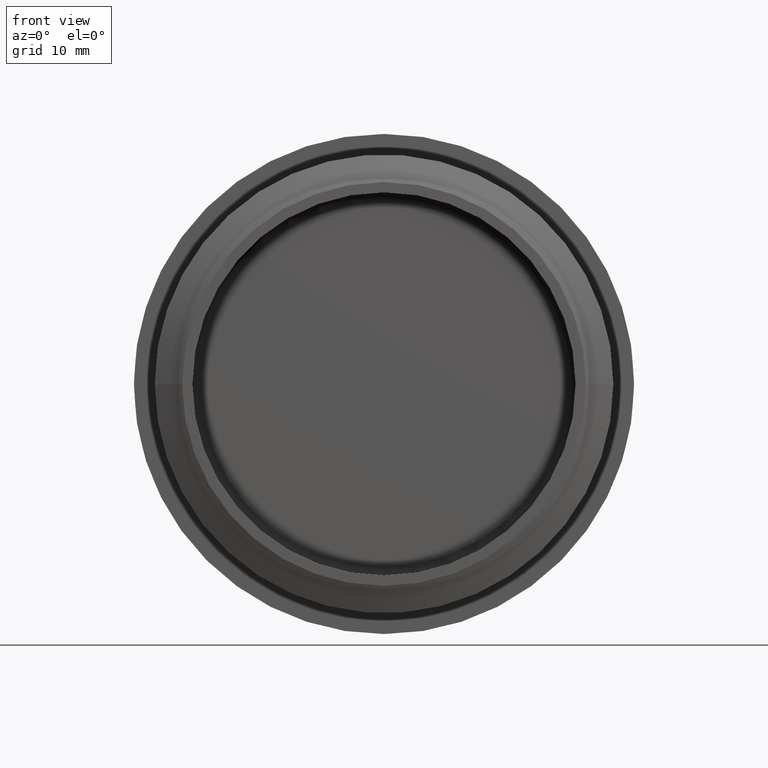
[diagram: clean part render]
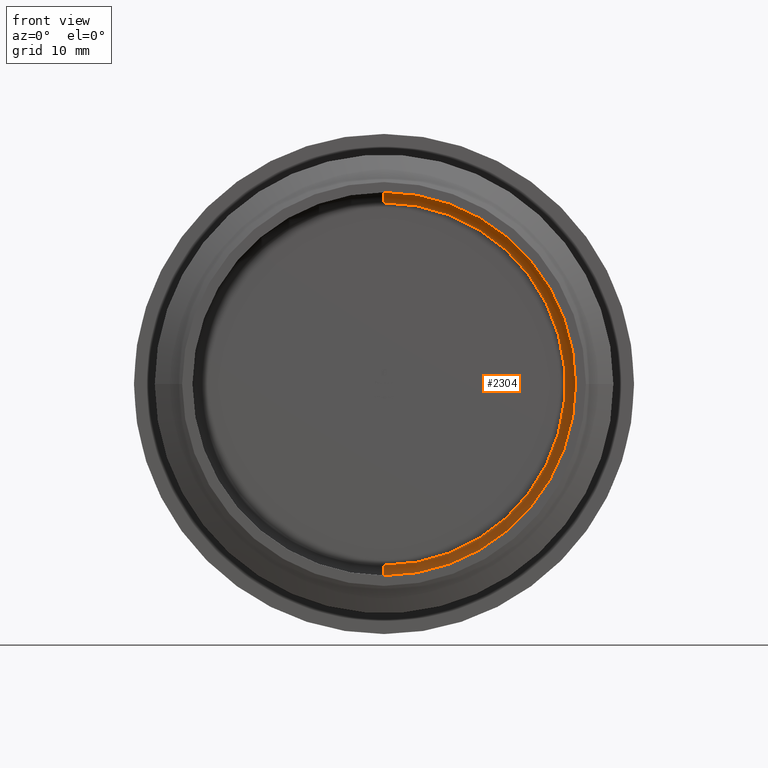
[diagram: same view with one face highlighted and labeled with its STEP entity id]
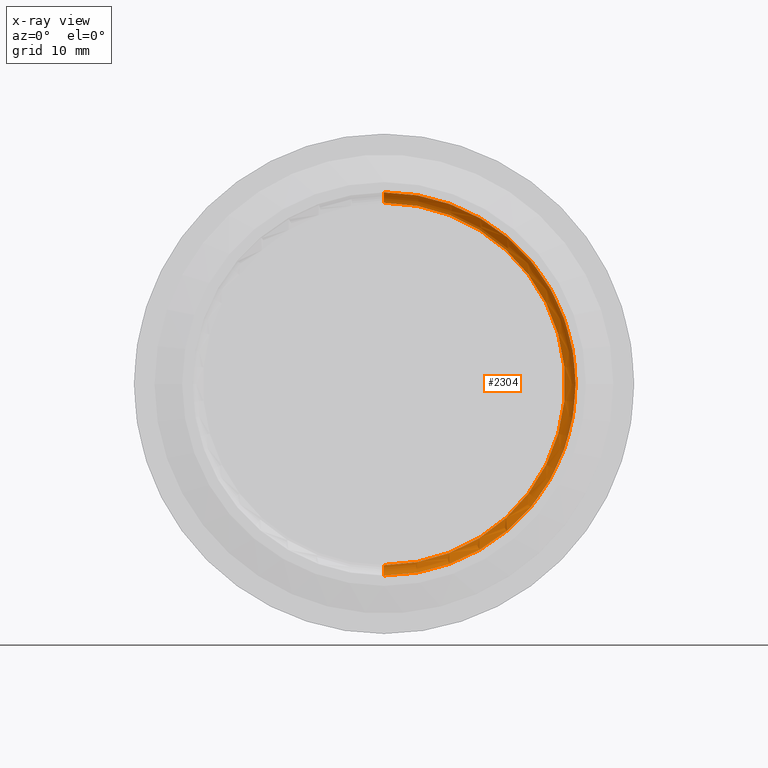
[diagram: x-ray of the same camera — body ghosted, the highlighted face saturated]
A machine part, front view. The second image highlights one B-rep face of the part: STEP entity #2304.
The next image is the same camera in x-ray: the body ghosted, the highlighted face saturated — about 1% of this face is hidden behind the body in this view.
In plain terms, the highlighted toroidal blend (fillet) surface has major radius 17.5 mm and minor (blend) radius 1 mm.
Its self-contained STEP definition (entity closure, byte-faithful):
#40 = CARTESIAN_POINT ( 'NONE',  ( 2.204364238465235428E-15, 12.99999999999999467, 17.49999999999999645 ) ) ;
#91 = AXIS2_PLACEMENT_3D ( 'NONE', #10530, #8345, #11597 ) ;
#161 = CIRCLE ( 'NONE', #13489, 1.000000000000000888 ) ;
#476 = CARTESIAN_POINT ( 'NONE',  ( 0.000000000000000000, 11.99999999999999289, 0.000000000000000000 ) ) ;
#561 = VERTEX_POINT ( 'NONE', #8964 ) ;
#690 = EDGE_CURVE ( 'NONE', #10908, #561, #2814, .T. ) ;
#776 = EDGE_CURVE ( 'NONE', #2849, #561, #161, .T. ) ;
#1863 = AXIS2_PLACEMENT_3D ( 'NONE', #476, #4670, #5795 ) ;
#2133 = CARTESIAN_POINT ( 'NONE',  ( 0.000000000000000000, 12.99999999999999467, -17.49999999999999645 ) ) ;
#2304 = ADVANCED_FACE ( 'NONE', ( #10146 ), #11483, .F. ) ;
#2814 = CIRCLE ( 'NONE', #1863, 18.50000000000000000 ) ;
#2849 = VERTEX_POINT ( 'NONE', #2133 ) ;
#2972 = CIRCLE ( 'NONE', #7119, 1.000000000000000888 ) ;
#3189 = EDGE_CURVE ( 'NONE', #2849, #3350, #5021, .T. ) ;
#3350 = VERTEX_POINT ( 'NONE', #40 ) ;
#3752 = CARTESIAN_POINT ( 'NONE',  ( 2.143131898507867854E-15, 11.99999999999999289, 17.49999999999999645 ) ) ;
#3863 = ORIENTED_EDGE ( 'NONE', *, *, #9900, .F. ) ;
#3898 = CARTESIAN_POINT ( 'NONE',  ( 0.000000000000000000, 12.99999999999999467, 0.000000000000000000 ) ) ;
#4670 = DIRECTION ( 'NONE',  ( 0.000000000000000000, 1.000000000000000000, 0.000000000000000000 ) ) ;
#5021 = CIRCLE ( 'NONE', #5160, 17.49999999999999645 ) ;
#5101 = DIRECTION ( 'NONE',  ( -0.000000000000000000, -1.000000000000000000, -0.000000000000000000 ) ) ;
#5160 = AXIS2_PLACEMENT_3D ( 'NONE', #3898, #5101, #8293 ) ;
#5795 = DIRECTION ( 'NONE',  ( 0.000000000000000000, 0.000000000000000000, -1.000000000000000000 ) ) ;
#7084 = DIRECTION ( 'NONE',  ( -1.000000000000000000, 0.000000000000000000, 0.000000000000000000 ) ) ;
#7119 = AXIS2_PLACEMENT_3D ( 'NONE', #3752, #10635, #13824 ) ;
#8293 = DIRECTION ( 'NONE',  ( 0.000000000000000000, 0.000000000000000000, -1.000000000000000000 ) ) ;
#8345 = DIRECTION ( 'NONE',  ( -0.000000000000000000, -1.000000000000000000, -0.000000000000000000 ) ) ;
#8950 = ORIENTED_EDGE ( 'NONE', *, *, #776, .T. ) ;
#8964 = CARTESIAN_POINT ( 'NONE',  ( 0.000000000000000000, 11.99999999999999289, -18.50000000000000000 ) ) ;
#9343 = DIRECTION ( 'NONE',  ( 0.000000000000000000, 0.000000000000000000, 1.000000000000000000 ) ) ;
#9347 = ORIENTED_EDGE ( 'NONE', *, *, #690, .F. ) ;
#9900 = EDGE_CURVE ( 'NONE', #3350, #10908, #2972, .T. ) ;
#10146 = FACE_OUTER_BOUND ( 'NONE', #13884, .T. ) ;
#10165 = CARTESIAN_POINT ( 'NONE',  ( 2.265596578422603396E-15, 11.99999999999999289, 18.50000000000000000 ) ) ;
#10530 = CARTESIAN_POINT ( 'NONE',  ( 0.000000000000000000, 11.99999999999999289, 0.000000000000000000 ) ) ;
#10635 = DIRECTION ( 'NONE',  ( 1.000000000000000000, 0.000000000000000000, -1.224646799147353207E-16 ) ) ;
#10908 = VERTEX_POINT ( 'NONE', #10165 ) ;
#11483 = TOROIDAL_SURFACE ( 'NONE', #91, 17.49999999999999645, 1.000000000000000000 ) ;
#11597 = DIRECTION ( 'NONE',  ( 0.000000000000000000, 0.000000000000000000, -1.000000000000000000 ) ) ;
#12004 = ORIENTED_EDGE ( 'NONE', *, *, #3189, .F. ) ;
#13489 = AXIS2_PLACEMENT_3D ( 'NONE', #13746, #7084, #9343 ) ;
#13746 = CARTESIAN_POINT ( 'NONE',  ( 0.000000000000000000, 11.99999999999999289, -17.49999999999999645 ) ) ;
#13824 = DIRECTION ( 'NONE',  ( -1.224646799147353454E-16, 0.000000000000000000, -1.000000000000000000 ) ) ;
#13884 = EDGE_LOOP ( 'NONE', ( #3863, #12004, #8950, #9347 ) ) ;